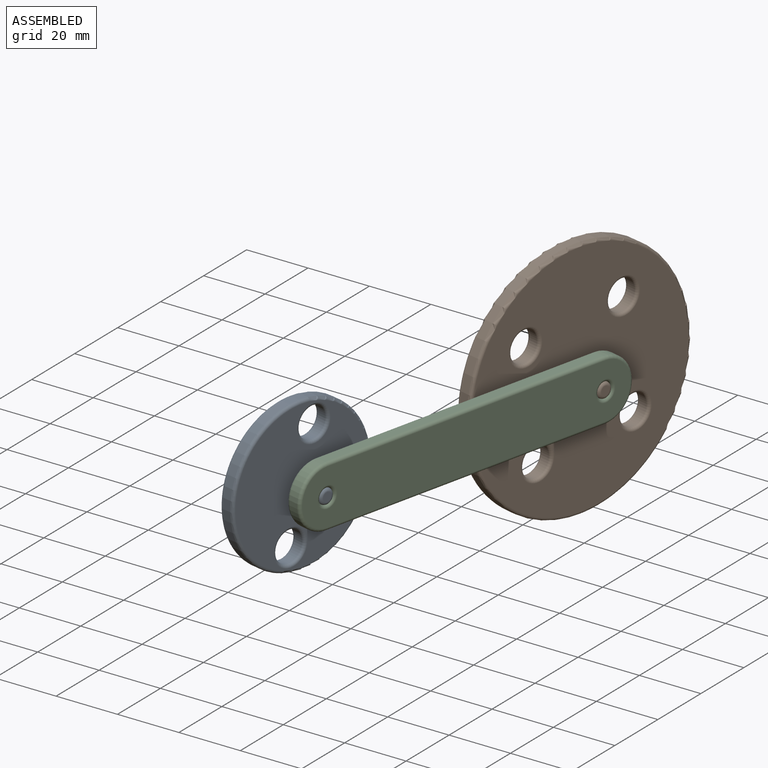
[diagram: assembled view]
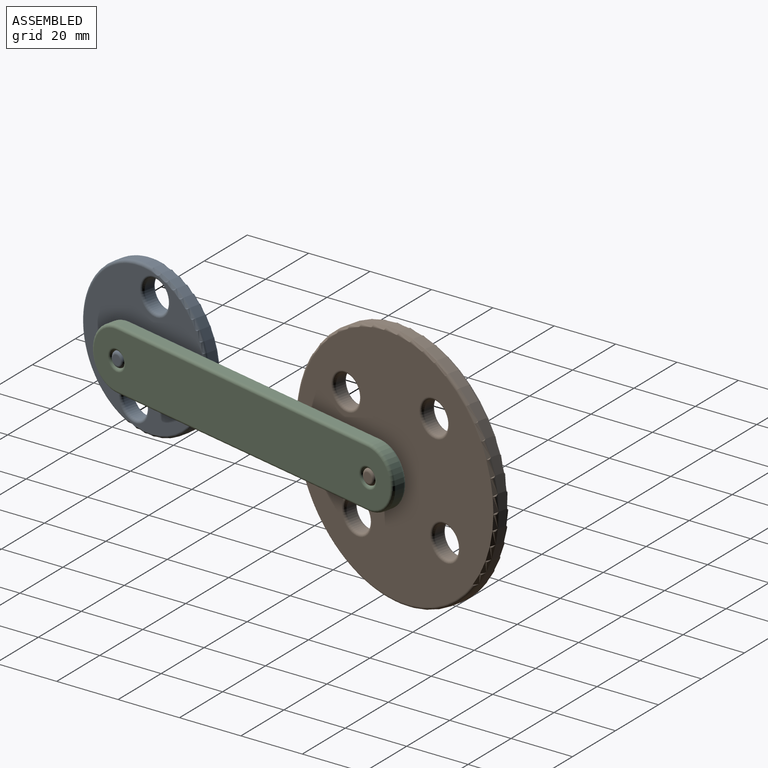
[diagram: assembled view, second angle]
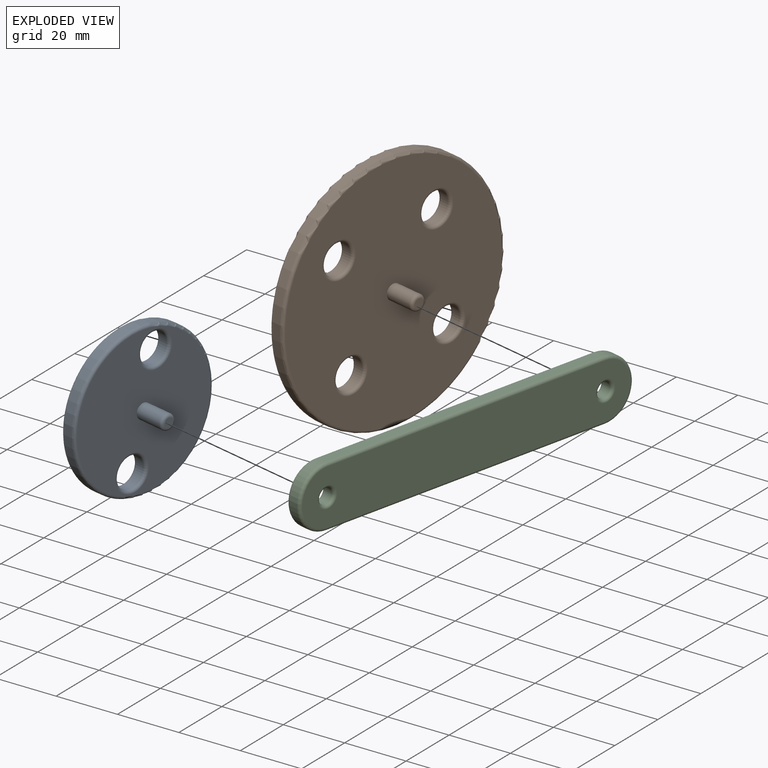
[diagram: exploded view]
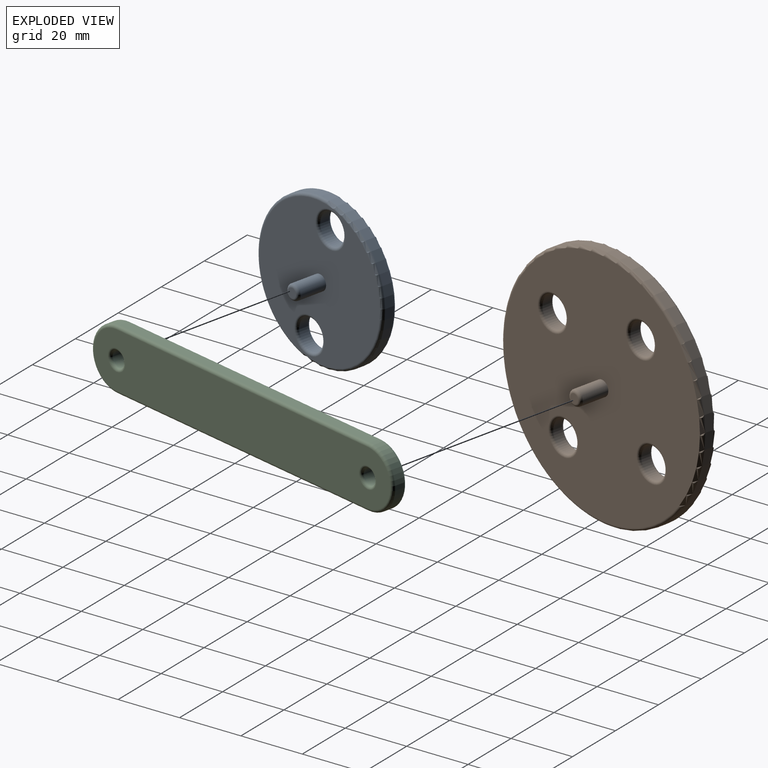
[diagram: exploded view, second angle]
ASSEMBLY  parts=3 mates=2
PART A: 14 faces, bbox 54.1x15x54.1 mm
  f0: cylinder r=2.5mm len=9mm, axis (0,1,0), area 141.4mm2, adj f5,f7
  f1: plane 3x3mm, normal (0,-1,0), area 7.1mm2, adj f7
  f2: cylinder r=25mm len=50mm, axis (0,1,0), area 471.2mm2, adj f10,f13
  f3: cylinder r=5mm len=10mm, axis (0,1,0), area 94.2mm2, adj f9,f12
  f4: cylinder r=5mm len=10mm, axis (0,1,0), area 94.2mm2, adj f8,f11
  f5: plane 48x48mm, normal (0,-1,0), area 1563.7mm2, adj f0,f11,f12,f13
  f6: plane 48x48mm, normal (0,1,0), area 1583.4mm2, adj f8,f9,f10
  f7: torus R=1.5mm, axis (0,-1,0), area 21.1mm2, adj f0,f1
  f8: torus R=6mm, axis (0,-1,0), area 52.9mm2, adj f4,f6
  f9: torus R=6mm, axis (0,-1,0), area 52.9mm2, adj f3,f6
  f10: torus R=24mm, axis (0,-1,0), area 243.2mm2, adj f2,f6
  f11: torus R=6mm, axis (0,-1,0), area 52.9mm2, adj f4,f5
  f12: torus R=6mm, axis (0,-1,0), area 52.9mm2, adj f3,f5
  f13: torus R=24mm, axis (0,-1,0), area 243.2mm2, adj f2,f5
PART B: 20 faces, bbox 86.6x15x86.6 mm
  f0: cylinder r=2.5mm len=9mm, axis (0,1,0), area 141.4mm2, adj f7,f9
  f1: plane 3x3mm, normal (0,-1,0), area 7.1mm2, adj f9
  f2: cylinder r=40mm len=80mm, axis (0,1,0), area 754mm2, adj f14,f19
  f3: cylinder r=5mm len=10mm, axis (0,1,0), area 94.2mm2, adj f12,f17
  f4: cylinder r=5mm len=10mm, axis (0,1,0), area 94.2mm2, adj f11,f16
  f5: cylinder r=5mm len=10mm, axis (0,1,0), area 94.2mm2, adj f10,f15
  f6: cylinder r=5mm len=10mm, axis (0,1,0), area 94.2mm2, adj f13,f18
  f7: plane 78x78mm, normal (0,-1,0), area 4306.3mm2, adj f0,f15,f16,f17,f18,f19
  f8: plane 78x78mm, normal (0,1,0), area 4326mm2, adj f10,f11,f12,f13,f14
  f9: torus R=1.5mm, axis (0,-1,0), area 21.1mm2, adj f0,f1
  f10: torus R=6mm, axis (0,-1,0), area 52.9mm2, adj f5,f8
  f11: torus R=6mm, axis (0,-1,0), area 52.9mm2, adj f4,f8
  f12: torus R=6mm, axis (0,-1,0), area 52.9mm2, adj f3,f8
  f13: torus R=6mm, axis (0,-1,0), area 52.9mm2, adj f6,f8
  f14: torus R=39mm, axis (0,-1,0), area 391.2mm2, adj f2,f8
  f15: torus R=6mm, axis (0,-1,0), area 52.9mm2, adj f5,f7
  f16: torus R=6mm, axis (0,-1,0), area 52.9mm2, adj f4,f7
  f17: torus R=6mm, axis (0,-1,0), area 52.9mm2, adj f3,f7
  f18: torus R=6mm, axis (0,-1,0), area 52.9mm2, adj f6,f7
  f19: torus R=39mm, axis (0,-1,0), area 391.2mm2, adj f2,f7
PART C: 20 faces, bbox 121.6x5x21.6 mm
  f0: plane 100x3mm, normal (0,0,1), area 300mm2, adj f1,f4,f12,f19
  f1: cylinder r=10mm len=20mm, axis (0,1,0), area 94.2mm2, adj f0,f2,f10,f17
  f2: plane 100x3mm, normal (0,0,-1), area 300mm2, adj f1,f4,f9,f16
  f3: cylinder r=2.5mm len=5mm, axis (0,1,0), area 47.1mm2, adj f8,f14
  f4: cylinder r=10mm len=20mm, axis (0,1,0), area 94.2mm2, adj f0,f2,f11,f18
  f5: cylinder r=2.5mm len=5mm, axis (0,1,0), area 47.1mm2, adj f13,f15
  f6: plane 118x18mm, normal (0,-1,0), area 1977.5mm2, adj f8,f9,f10,f11,f12,f13
  f7: plane 118x18mm, normal (0,1,0), area 1977.5mm2, adj f14,f15,f16,f17,f18,f19
  f8: torus R=3.5mm, axis (0,-1,0), area 28.3mm2, adj f3,f6
  f9: cylinder r=1mm len=100mm, axis (-1,0,0), area 157.1mm2, adj f2,f6,f10,f11
  f10: torus R=9mm, axis (0,-1,0), area 47.6mm2, adj f1,f6,f9,f12
  f11: torus R=9mm, axis (0,-1,0), area 47.6mm2, adj f4,f6,f9,f12
  f12: cylinder r=1mm len=100mm, axis (1,0,0), area 157.1mm2, adj f0,f6,f10,f11
  f13: torus R=3.5mm, axis (0,-1,0), area 28.3mm2, adj f5,f6
  f14: torus R=3.5mm, axis (0,-1,0), area 28.3mm2, adj f3,f7
  f15: torus R=3.5mm, axis (0,-1,0), area 28.3mm2, adj f5,f7
  f16: cylinder r=1mm len=100mm, axis (1,0,0), area 157.1mm2, adj f2,f7,f17,f18
  f17: torus R=9mm, axis (0,-1,0), area 47.6mm2, adj f1,f7,f16,f19
  f18: torus R=9mm, axis (0,-1,0), area 47.6mm2, adj f4,f7,f16,f19
  f19: cylinder r=1mm len=100mm, axis (-1,0,0), area 157.1mm2, adj f0,f7,f17,f18
PLACE A rot(axis=(0.49,-0.61,0.62),104deg) t=(105.2,-27.31,50.14)mm
PLACE B rot(axis=(0.61,-0.76,0.21),150.4deg) t=(127.56,70.16,50.14)mm
PLACE C rot(axis=(0,0,1),77.1deg) t=(128.56,18.63,50.14)mm fixed
MATE revolute B.f0 <-> C.f3  axis (0.97,-0.22,0) through (142.18,66.81,50.14)mm
MATE revolute A.f0 <-> C.f1  axis (0.97,-0.22,0) through (119.82,-30.66,50.14)mm
